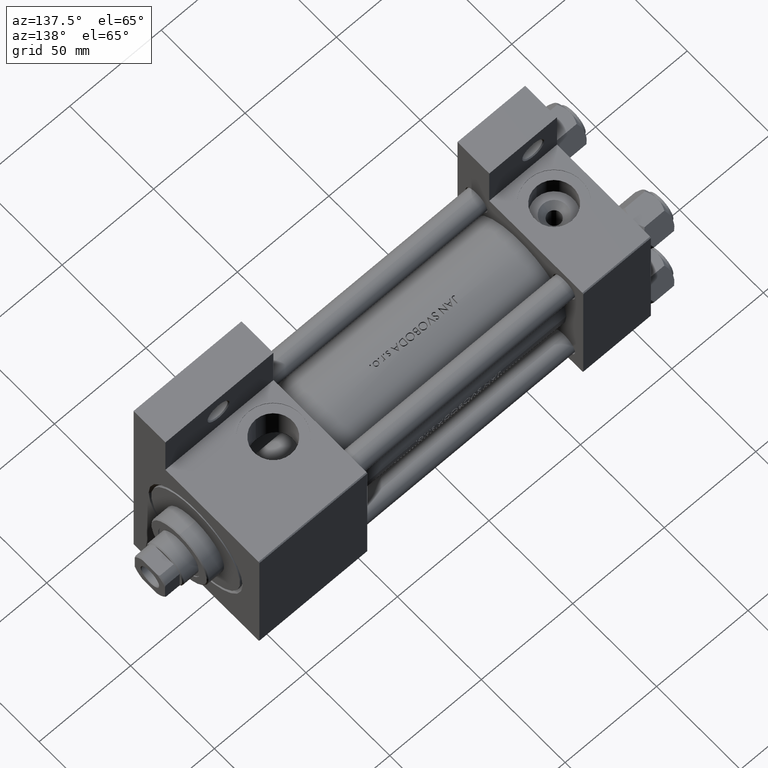
[diagram: clean part render]
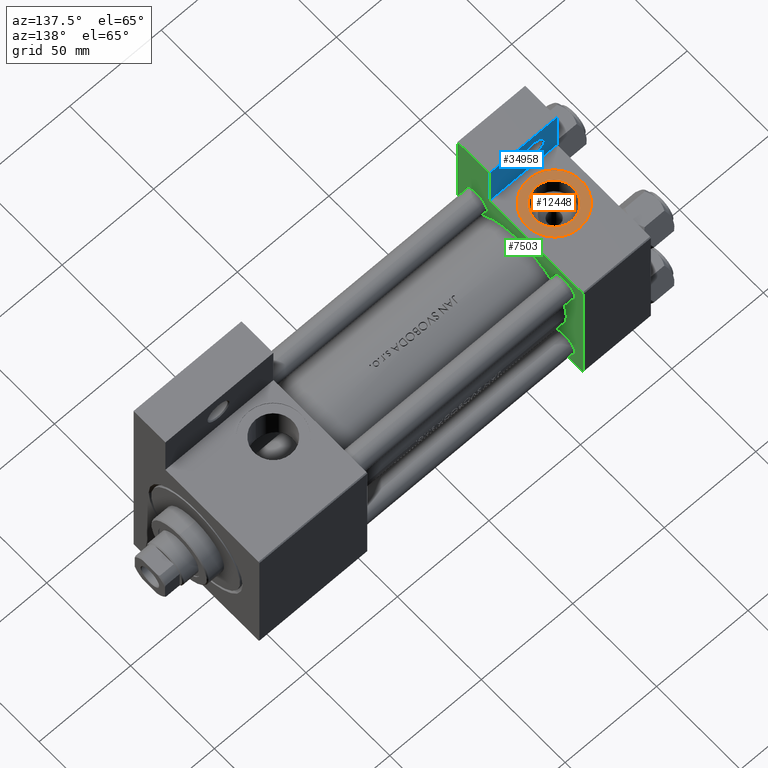
[diagram: same view with three faces highlighted in distinct colors, each labeled with its STEP entity id]
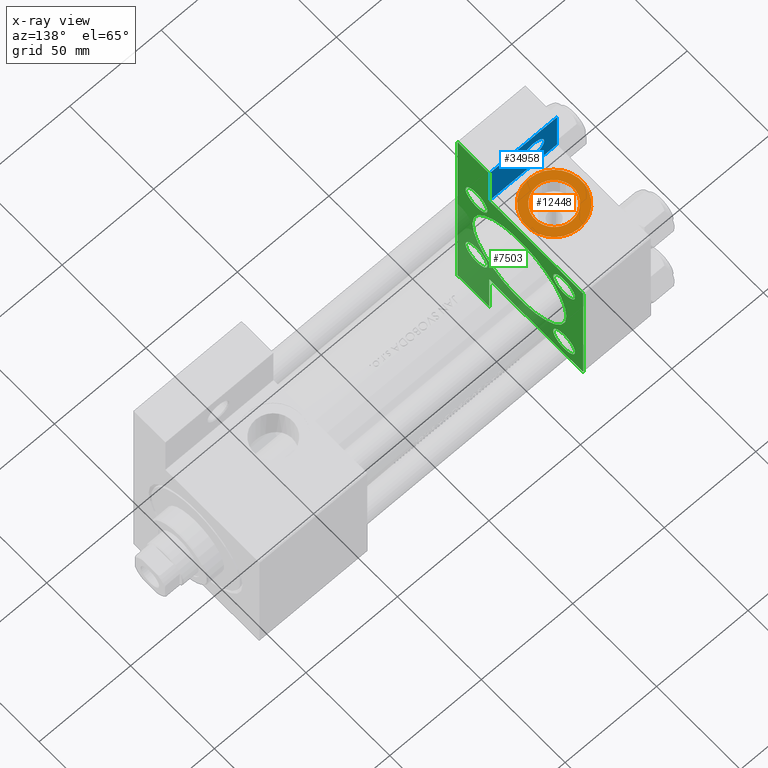
[diagram: x-ray of the same camera — body ghosted, the three highlighted faces saturated]
A machine part, auxiliary view with three faces highlighted in distinct colors.
The next image is the same camera in x-ray (body ghosted, the three faces saturated) — at least one of them is partly hidden behind the body in this view.
Their STEP definitions:

[orange] entity #12448 — the highlighted planar face has unit normal (0, -0, 1).
#2448 = ORIENTED_EDGE ( 'NONE', *, *, #41680, .T. ) ;
#5025 = FACE_OUTER_BOUND ( 'NONE', #38957, .T. ) ;
#6002 = CARTESIAN_POINT ( 'NONE',  ( 18.50000000000000000, -37.30000000000000426, -3.452099717193846907E-15 ) ) ;
#6221 = CIRCLE ( 'NONE', #18855, 15.00000000000000178 ) ;
#6313 = CIRCLE ( 'NONE', #34158, 10.48000000000000043 ) ;
#6790 = EDGE_LOOP ( 'NONE', ( #45760, #23331 ) ) ;
#7754 = CIRCLE ( 'NONE', #17285, 10.48000000000000043 ) ;
#8284 = CARTESIAN_POINT ( 'NONE',  ( 18.50000000000000355, -37.30000000000000426, 14.99999999999999822 ) ) ;
#8390 = ORIENTED_EDGE ( 'NONE', *, *, #10739, .T. ) ;
#9018 = PLANE ( 'NONE',  #32409 ) ;
#10739 = EDGE_CURVE ( 'NONE', #17445, #15867, #6221, .T. ) ;
#12448 = ADVANCED_FACE ( 'NONE', ( #39382, #5025 ), #9018, .T. ) ;
#13067 = AXIS2_PLACEMENT_3D ( 'NONE', #49151, #19241, #26701 ) ;
#15867 = VERTEX_POINT ( 'NONE', #8284 ) ;
#16629 = DIRECTION ( 'NONE',  ( 0.000000000000000000, 0.000000000000000000, -1.000000000000000000 ) ) ;
#17285 = AXIS2_PLACEMENT_3D ( 'NONE', #36734, #24545, #47712 ) ;
#17445 = VERTEX_POINT ( 'NONE', #25242 ) ;
#17997 = CARTESIAN_POINT ( 'NONE',  ( 18.50000000000000000, -37.30000000000000426, -3.452099717193846907E-15 ) ) ;
#18855 = AXIS2_PLACEMENT_3D ( 'NONE', #17997, #48651, #29431 ) ;
#19241 = DIRECTION ( 'NONE',  ( 0.000000000000000000, -1.000000000000000000, -8.673617379884036705E-17 ) ) ;
#21850 = EDGE_CURVE ( 'NONE', #32829, #43046, #7754, .T. ) ;
#23331 = ORIENTED_EDGE ( 'NONE', *, *, #26412, .F. ) ;
#24181 = CIRCLE ( 'NONE', #13067, 15.00000000000000178 ) ;
#24545 = DIRECTION ( 'NONE',  ( 0.000000000000000000, -1.000000000000000000, -8.673617379884036705E-17 ) ) ;
#25242 = CARTESIAN_POINT ( 'NONE',  ( 18.50000000000000000, -37.30000000000000426, -15.00000000000000533 ) ) ;
#26412 = EDGE_CURVE ( 'NONE', #43046, #32829, #6313, .T. ) ;
#26701 = DIRECTION ( 'NONE',  ( 0.000000000000000000, 0.000000000000000000, -1.000000000000000000 ) ) ;
#28307 = DIRECTION ( 'NONE',  ( 0.000000000000000000, -1.000000000000000000, -8.673617379884036705E-17 ) ) ;
#29431 = DIRECTION ( 'NONE',  ( 0.000000000000000000, 0.000000000000000000, -1.000000000000000000 ) ) ;
#32409 = AXIS2_PLACEMENT_3D ( 'NONE', #6002, #40117, #35885 ) ;
#32829 = VERTEX_POINT ( 'NONE', #46810 ) ;
#34158 = AXIS2_PLACEMENT_3D ( 'NONE', #43038, #28307, #16629 ) ;
#35343 = CARTESIAN_POINT ( 'NONE',  ( 18.50000000000000000, -37.30000000000000426, 10.47999999999999687 ) ) ;
#35885 = DIRECTION ( 'NONE',  ( 0.000000000000000000, 8.673617379884036705E-17, -1.000000000000000000 ) ) ;
#36734 = CARTESIAN_POINT ( 'NONE',  ( 18.50000000000000000, -37.30000000000000426, -3.452099717193846907E-15 ) ) ;
#38957 = EDGE_LOOP ( 'NONE', ( #8390, #2448 ) ) ;
#39382 = FACE_BOUND ( 'NONE', #6790, .T. ) ;
#40117 = DIRECTION ( 'NONE',  ( 0.000000000000000000, -1.000000000000000000, -8.673617379884036705E-17 ) ) ;
#41680 = EDGE_CURVE ( 'NONE', #15867, #17445, #24181, .T. ) ;
#43038 = CARTESIAN_POINT ( 'NONE',  ( 18.50000000000000000, -37.30000000000000426, -3.452099717193846907E-15 ) ) ;
#43046 = VERTEX_POINT ( 'NONE', #35343 ) ;
#45760 = ORIENTED_EDGE ( 'NONE', *, *, #21850, .F. ) ;
#46810 = CARTESIAN_POINT ( 'NONE',  ( 18.50000000000000000, -37.30000000000000426, -10.48000000000000398 ) ) ;
#47712 = DIRECTION ( 'NONE',  ( 0.000000000000000000, 0.000000000000000000, -1.000000000000000000 ) ) ;
#48651 = DIRECTION ( 'NONE',  ( 0.000000000000000000, -1.000000000000000000, -8.673617379884036705E-17 ) ) ;
#49151 = CARTESIAN_POINT ( 'NONE',  ( 18.50000000000000000, -37.30000000000000426, -3.452099717193846907E-15 ) ) ;

[blue] entity #34958 — the highlighted planar face has unit normal (0, -1, 0).
#1262 = VERTEX_POINT ( 'NONE', #15414 ) ;
#1274 = VECTOR ( 'NONE', #9531, 1000.000000000000000 ) ;
#2573 = EDGE_LOOP ( 'NONE', ( #13157, #5706 ) ) ;
#4011 = DIRECTION ( 'NONE',  ( 0.000000000000000000, 0.000000000000000000, -1.000000000000000000 ) ) ;
#4158 = ORIENTED_EDGE ( 'NONE', *, *, #4825, .T. ) ;
#4825 = EDGE_CURVE ( 'NONE', #1262, #23500, #37490, .T. ) ;
#5639 = AXIS2_PLACEMENT_3D ( 'NONE', #9875, #22079, #32523 ) ;
#5706 = ORIENTED_EDGE ( 'NONE', *, *, #34286, .T. ) ;
#5865 = ORIENTED_EDGE ( 'NONE', *, *, #18410, .T. ) ;
#6322 = LINE ( 'NONE', #17271, #42935 ) ;
#7241 = ORIENTED_EDGE ( 'NONE', *, *, #39515, .T. ) ;
#8458 = CARTESIAN_POINT ( 'NONE',  ( 18.99950000000010419, -51.00000000000002132, -18.50000000000000000 ) ) ;
#9531 = DIRECTION ( 'NONE',  ( -0.000000000000000000, 1.000000000000000000, 0.000000000000000000 ) ) ;
#9875 = CARTESIAN_POINT ( 'NONE',  ( 12.99999999999999822, -51.00000000000002132, -18.50000000000000000 ) ) ;
#10138 = AXIS2_PLACEMENT_3D ( 'NONE', #34837, #15201, #42335 ) ;
#11676 = CARTESIAN_POINT ( 'NONE',  ( 37.00000000000000000, -63.50000000000000000, -18.50000000000000355 ) ) ;
#11897 = EDGE_CURVE ( 'NONE', #15390, #16461, #35575, .T. ) ;
#12856 = AXIS2_PLACEMENT_3D ( 'NONE', #30155, #4011, #33654 ) ;
#13157 = ORIENTED_EDGE ( 'NONE', *, *, #11897, .T. ) ;
#14854 = VERTEX_POINT ( 'NONE', #47655 ) ;
#15201 = DIRECTION ( 'NONE',  ( 0.000000000000000000, 0.000000000000000000, -1.000000000000000000 ) ) ;
#15385 = VECTOR ( 'NONE', #16135, 1000.000000000000000 ) ;
#15390 = VERTEX_POINT ( 'NONE', #8458 ) ;
#15414 = CARTESIAN_POINT ( 'NONE',  ( 37.00000000000000000, -37.50000000000000000, -18.50000000000000355 ) ) ;
#16135 = DIRECTION ( 'NONE',  ( 1.000000000000000000, 0.000000000000000000, 0.000000000000000000 ) ) ;
#16461 = VERTEX_POINT ( 'NONE', #16479 ) ;
#16479 = CARTESIAN_POINT ( 'NONE',  ( 7.000499999999892253, -51.00000000000002132, -18.50000000000000000 ) ) ;
#17271 = CARTESIAN_POINT ( 'NONE',  ( 3.977209754999744250E-16, -63.49999999999998579, -18.50000000000000355 ) ) ;
#18410 = EDGE_CURVE ( 'NONE', #38578, #1262, #40143, .T. ) ;
#18465 = PLANE ( 'NONE',  #12856 ) ;
#18787 = VECTOR ( 'NONE', #40475, 1000.000000000000000 ) ;
#22079 = DIRECTION ( 'NONE',  ( 0.000000000000000000, 0.000000000000000000, -1.000000000000000000 ) ) ;
#23500 = VERTEX_POINT ( 'NONE', #37512 ) ;
#24095 = CARTESIAN_POINT ( 'NONE',  ( 3.977209754999747208E-16, -63.50000000000000000, -18.50000000000000355 ) ) ;
#26414 = FACE_OUTER_BOUND ( 'NONE', #48841, .T. ) ;
#27093 = CIRCLE ( 'NONE', #5639, 5.999500000000105082 ) ;
#27419 = EDGE_CURVE ( 'NONE', #23500, #14854, #6322, .T. ) ;
#28471 = DIRECTION ( 'NONE',  ( 4.278042683914906889E-17, -1.000000000000000000, 0.000000000000000000 ) ) ;
#30155 = CARTESIAN_POINT ( 'NONE',  ( 0.000000000000000000, 0.000000000000000000, -18.50000000000000000 ) ) ;
#31931 = CARTESIAN_POINT ( 'NONE',  ( 37.00000000000000000, -63.49999999999998579, -18.50000000000000355 ) ) ;
#32523 = DIRECTION ( 'NONE',  ( -1.000000000000000000, 0.000000000000000000, 0.000000000000000000 ) ) ;
#33654 = DIRECTION ( 'NONE',  ( -1.000000000000000000, 0.000000000000000000, -0.000000000000000000 ) ) ;
#34286 = EDGE_CURVE ( 'NONE', #16461, #15390, #27093, .T. ) ;
#34837 = CARTESIAN_POINT ( 'NONE',  ( 12.99999999999999822, -51.00000000000002132, -18.50000000000000000 ) ) ;
#34958 = ADVANCED_FACE ( 'NONE', ( #49109, #26414 ), #18465, .F. ) ;
#35575 = CIRCLE ( 'NONE', #10138, 5.999500000000105082 ) ;
#37490 = LINE ( 'NONE', #44971, #18787 ) ;
#37512 = CARTESIAN_POINT ( 'NONE',  ( -7.145701223179004046E-16, -37.50000000000000711, -18.50000000000000355 ) ) ;
#37656 = ORIENTED_EDGE ( 'NONE', *, *, #27419, .T. ) ;
#38578 = VERTEX_POINT ( 'NONE', #11676 ) ;
#39515 = EDGE_CURVE ( 'NONE', #14854, #38578, #43276, .T. ) ;
#40143 = LINE ( 'NONE', #31931, #1274 ) ;
#40475 = DIRECTION ( 'NONE',  ( -1.000000000000000000, 0.000000000000000000, 0.000000000000000000 ) ) ;
#42335 = DIRECTION ( 'NONE',  ( -1.000000000000000000, 0.000000000000000000, 0.000000000000000000 ) ) ;
#42935 = VECTOR ( 'NONE', #28471, 1000.000000000000000 ) ;
#43276 = LINE ( 'NONE', #24095, #15385 ) ;
#44971 = CARTESIAN_POINT ( 'NONE',  ( -7.145701223179000102E-16, -37.50000000000001421, -18.49999999999999645 ) ) ;
#47655 = CARTESIAN_POINT ( 'NONE',  ( 3.977209754999747208E-16, -63.50000000000000000, -18.50000000000000355 ) ) ;
#48841 = EDGE_LOOP ( 'NONE', ( #5865, #4158, #37656, #7241 ) ) ;
#49109 = FACE_BOUND ( 'NONE', #2573, .T. ) ;

[green] entity #7503 — the highlighted planar face has unit normal (-1, 0, -0).
#7 = AXIS2_PLACEMENT_3D ( 'NONE', #14023, #48139, #44401 ) ;
#395 = CARTESIAN_POINT ( 'NONE',  ( 37.00000000000000000, 26.14999999999999858, 19.64999999999999858 ) ) ;
#489 = ORIENTED_EDGE ( 'NONE', *, *, #18410, .F. ) ;
#1262 = VERTEX_POINT ( 'NONE', #15414 ) ;
#1274 = VECTOR ( 'NONE', #9531, 1000.000000000000000 ) ;
#2264 = ORIENTED_EDGE ( 'NONE', *, *, #35293, .F. ) ;
#2307 = VERTEX_POINT ( 'NONE', #2432 ) ;
#2432 = CARTESIAN_POINT ( 'NONE',  ( 37.00000000000000711, 0.000000000000000000, 27.50000000000000000 ) ) ;
#2575 = VECTOR ( 'NONE', #15288, 1000.000000000000000 ) ;
#2978 = CARTESIAN_POINT ( 'NONE',  ( 37.00000000000000000, -26.14999999999999147, -19.65000000000000924 ) ) ;
#3580 = CARTESIAN_POINT ( 'NONE',  ( 37.00000000000000000, 36.99999999999999289, 37.50000000000000000 ) ) ;
#3642 = ORIENTED_EDGE ( 'NONE', *, *, #38628, .T. ) ;
#3724 = VERTEX_POINT ( 'NONE', #3860 ) ;
#3860 = CARTESIAN_POINT ( 'NONE',  ( 37.00000000000000000, -37.50000000000000711, 36.99999999999999289 ) ) ;
#3885 = ORIENTED_EDGE ( 'NONE', *, *, #39709, .T. ) ;
#4155 = VERTEX_POINT ( 'NONE', #5258 ) ;
#4321 = DIRECTION ( 'NONE',  ( -1.000000000000000000, 0.000000000000000000, -0.000000000000000000 ) ) ;
#4499 = VECTOR ( 'NONE', #39239, 1000.000000000000000 ) ;
#4773 = CIRCLE ( 'NONE', #8770, 6.500000000000002665 ) ;
#4900 = CARTESIAN_POINT ( 'NONE',  ( 37.00000000000000000, 26.14999999999999858, -32.65000000000000568 ) ) ;
#4938 = CARTESIAN_POINT ( 'NONE',  ( 37.00000000000001421, 63.50000000000000000, -37.50000000000002132 ) ) ;
#5258 = CARTESIAN_POINT ( 'NONE',  ( 37.00000000000000711, 37.50000000000000711, -18.50000000000000355 ) ) ;
#5328 = VECTOR ( 'NONE', #12312, 1000.000000000000000 ) ;
#5339 = CIRCLE ( 'NONE', #13304, 6.500000000000002665 ) ;
#6066 = EDGE_CURVE ( 'NONE', #36660, #34393, #21185, .T. ) ;
#6460 = CARTESIAN_POINT ( 'NONE',  ( 37.00000000000000000, -26.14999999999999147, -32.65000000000001279 ) ) ;
#6497 = CARTESIAN_POINT ( 'NONE',  ( 37.00000000000000000, 26.14999999999999858, 26.15000000000000213 ) ) ;
#6804 = CARTESIAN_POINT ( 'NONE',  ( 37.00000000000000000, -26.14999999999999147, 32.65000000000001990 ) ) ;
#7031 = CARTESIAN_POINT ( 'NONE',  ( 37.00000000000000000, -26.14999999999999147, -26.15000000000000924 ) ) ;
#7338 = FACE_BOUND ( 'NONE', #30650, .T. ) ;
#7503 = ADVANCED_FACE ( 'NONE', ( #41699, #26730, #33727, #15056, #7338, #18539 ), #15296, .F. ) ;
#7854 = CARTESIAN_POINT ( 'NONE',  ( 37.00000000000000000, -37.50000000000000711, 37.49999999999999289 ) ) ;
#7886 = EDGE_CURVE ( 'NONE', #31638, #24363, #5339, .T. ) ;
#8281 = CARTESIAN_POINT ( 'NONE',  ( 37.00000000000000000, 26.14999999999999858, -26.15000000000000213 ) ) ;
#8507 = AXIS2_PLACEMENT_3D ( 'NONE', #26249, #4321, #30227 ) ;
#8770 = AXIS2_PLACEMENT_3D ( 'NONE', #8281, #16962, #35147 ) ;
#9023 = VERTEX_POINT ( 'NONE', #42857 ) ;
#9242 = ORIENTED_EDGE ( 'NONE', *, *, #45445, .T. ) ;
#9425 = VERTEX_POINT ( 'NONE', #4938 ) ;
#9457 = CARTESIAN_POINT ( 'NONE',  ( 37.00000000000000000, -37.00000000000000711, 37.49999999999999289 ) ) ;
#9477 = CARTESIAN_POINT ( 'NONE',  ( 37.00000000000000000, -26.14999999999999147, 26.15000000000000924 ) ) ;
#9531 = DIRECTION ( 'NONE',  ( -0.000000000000000000, 1.000000000000000000, 0.000000000000000000 ) ) ;
#10203 = VECTOR ( 'NONE', #21200, 1000.000000000000000 ) ;
#10571 = DIRECTION ( 'NONE',  ( 0.000000000000000000, 0.000000000000000000, 1.000000000000000000 ) ) ;
#10726 = ORIENTED_EDGE ( 'NONE', *, *, #32252, .T. ) ;
#10929 = DIRECTION ( 'NONE',  ( 0.000000000000000000, -1.000000000000000000, -9.251858538542971581E-17 ) ) ;
#11313 = CARTESIAN_POINT ( 'NONE',  ( 37.00000000000000000, 37.49999999999999289, 37.50000000000000000 ) ) ;
#11462 = VERTEX_POINT ( 'NONE', #6804 ) ;
#11676 = CARTESIAN_POINT ( 'NONE',  ( 37.00000000000000000, -63.50000000000000000, -18.50000000000000355 ) ) ;
#11761 = ORIENTED_EDGE ( 'NONE', *, *, #46152, .T. ) ;
#12246 = AXIS2_PLACEMENT_3D ( 'NONE', #43806, #43560, #17634 ) ;
#12312 = DIRECTION ( 'NONE',  ( 0.000000000000000000, 9.251858538542971581E-17, -1.000000000000000000 ) ) ;
#12608 = CARTESIAN_POINT ( 'NONE',  ( 37.00000000000000000, -63.49999999999998579, 26.72167621838007889 ) ) ;
#12738 = ORIENTED_EDGE ( 'NONE', *, *, #6066, .T. ) ;
#13304 = AXIS2_PLACEMENT_3D ( 'NONE', #7031, #26671, #19212 ) ;
#13368 = CARTESIAN_POINT ( 'NONE',  ( 37.00000000000000000, 26.14999999999999858, -19.65000000000000213 ) ) ;
#13810 = CARTESIAN_POINT ( 'NONE',  ( 37.00000000000000000, -26.14999999999999147, 19.65000000000000213 ) ) ;
#14023 = CARTESIAN_POINT ( 'NONE',  ( 37.00000000000000711, 0.000000000000000000, -0.5000000000000004441 ) ) ;
#14117 = LINE ( 'NONE', #41015, #29576 ) ;
#15056 = FACE_BOUND ( 'NONE', #38335, .T. ) ;
#15288 = DIRECTION ( 'NONE',  ( 0.000000000000000000, 0.000000000000000000, -1.000000000000000000 ) ) ;
#15296 = PLANE ( 'NONE',  #8507 ) ;
#15414 = CARTESIAN_POINT ( 'NONE',  ( 37.00000000000000000, -37.50000000000000000, -18.50000000000000355 ) ) ;
#16079 = VECTOR ( 'NONE', #40577, 1000.000000000000114 ) ;
#16298 = CARTESIAN_POINT ( 'NONE',  ( 37.00000000000000000, 26.14999999999999858, 32.65000000000001279 ) ) ;
#16962 = DIRECTION ( 'NONE',  ( -1.000000000000000000, 0.000000000000000000, -0.000000000000000000 ) ) ;
#17241 = ORIENTED_EDGE ( 'NONE', *, *, #27082, .F. ) ;
#17577 = ORIENTED_EDGE ( 'NONE', *, *, #21222, .T. ) ;
#17634 = DIRECTION ( 'NONE',  ( 0.000000000000000000, 0.000000000000000000, 1.000000000000000000 ) ) ;
#17698 = DIRECTION ( 'NONE',  ( 0.000000000000000000, 0.000000000000000000, 1.000000000000000000 ) ) ;
#18410 = EDGE_CURVE ( 'NONE', #38578, #1262, #40143, .T. ) ;
#18539 = FACE_OUTER_BOUND ( 'NONE', #47824, .T. ) ;
#19212 = DIRECTION ( 'NONE',  ( 0.000000000000000000, 0.000000000000000000, 1.000000000000000000 ) ) ;
#19483 = ORIENTED_EDGE ( 'NONE', *, *, #36195, .T. ) ;
#19639 = EDGE_CURVE ( 'NONE', #38578, #33128, #39974, .T. ) ;
#20578 = CARTESIAN_POINT ( 'NONE',  ( 37.00000000000000000, 37.49999999999999289, -37.50000000000000000 ) ) ;
#20691 = EDGE_CURVE ( 'NONE', #3724, #1262, #37983, .T. ) ;
#20945 = DIRECTION ( 'NONE',  ( -1.000000000000000000, 0.000000000000000000, -0.000000000000000000 ) ) ;
#21185 = CIRCLE ( 'NONE', #41896, 6.500000000000008882 ) ;
#21200 = DIRECTION ( 'NONE',  ( 2.668805347656626678E-16, 1.000000000000000000, 0.000000000000000000 ) ) ;
#21222 = EDGE_CURVE ( 'NONE', #30907, #3724, #21684, .T. ) ;
#21245 = ORIENTED_EDGE ( 'NONE', *, *, #49061, .F. ) ;
#21342 = CARTESIAN_POINT ( 'NONE',  ( 37.00000000000000000, -26.14999999999999147, 26.15000000000000924 ) ) ;
#21577 = DIRECTION ( 'NONE',  ( 0.000000000000000000, -1.734723475976806848E-16, -1.000000000000000000 ) ) ;
#21684 = LINE ( 'NONE', #24914, #41183 ) ;
#22092 = DIRECTION ( 'NONE',  ( 0.000000000000000000, 0.000000000000000000, 1.000000000000000000 ) ) ;
#22366 = CARTESIAN_POINT ( 'NONE',  ( 37.00000000000000000, -63.50000000000000000, -37.49999999999999289 ) ) ;
#23122 = CARTESIAN_POINT ( 'NONE',  ( 37.00000000000000000, -26.14999999999999147, -26.15000000000000924 ) ) ;
#23230 = CIRCLE ( 'NONE', #40757, 6.500000000000008882 ) ;
#23325 = VERTEX_POINT ( 'NONE', #13368 ) ;
#23870 = CIRCLE ( 'NONE', #38977, 6.500000000000002665 ) ;
#24054 = EDGE_CURVE ( 'NONE', #4155, #45238, #32405, .T. ) ;
#24058 = ORIENTED_EDGE ( 'NONE', *, *, #7886, .T. ) ;
#24363 = VERTEX_POINT ( 'NONE', #2978 ) ;
#24648 = DIRECTION ( 'NONE',  ( -1.000000000000000000, 0.000000000000000000, -0.000000000000000000 ) ) ;
#24679 = EDGE_CURVE ( 'NONE', #34393, #36660, #25354, .T. ) ;
#24914 = CARTESIAN_POINT ( 'NONE',  ( 37.00000000000000000, -37.50000000000000711, 36.99999999999999289 ) ) ;
#25354 = CIRCLE ( 'NONE', #26924, 6.500000000000008882 ) ;
#25368 = CARTESIAN_POINT ( 'NONE',  ( 37.00000000000000000, 36.99999999999999289, 37.50000000000000000 ) ) ;
#25539 = CARTESIAN_POINT ( 'NONE',  ( 37.00000000000000000, 37.49999999999999289, 37.00000000000000000 ) ) ;
#26249 = CARTESIAN_POINT ( 'NONE',  ( 37.00000000000000000, 0.000000000000000000, 0.000000000000000000 ) ) ;
#26488 = DIRECTION ( 'NONE',  ( -1.000000000000000000, 0.000000000000000000, -0.000000000000000000 ) ) ;
#26666 = CARTESIAN_POINT ( 'NONE',  ( 37.00000000000001421, 63.50000000000000000, -18.50000000000000355 ) ) ;
#26671 = DIRECTION ( 'NONE',  ( -1.000000000000000000, 0.000000000000000000, -0.000000000000000000 ) ) ;
#26730 = FACE_BOUND ( 'NONE', #29365, .T. ) ;
#26924 = AXIS2_PLACEMENT_3D ( 'NONE', #36957, #26488, #10571 ) ;
#27082 = EDGE_CURVE ( 'NONE', #2307, #9023, #38178, .T. ) ;
#27231 = CIRCLE ( 'NONE', #35197, 6.500000000000002665 ) ;
#27333 = CIRCLE ( 'NONE', #12246, 28.00000000000000000 ) ;
#27348 = EDGE_LOOP ( 'NONE', ( #24058, #3642 ) ) ;
#29365 = EDGE_LOOP ( 'NONE', ( #10726, #33103 ) ) ;
#29576 = VECTOR ( 'NONE', #21577, 1000.000000000000000 ) ;
#29579 = LINE ( 'NONE', #44801, #36727 ) ;
#30227 = DIRECTION ( 'NONE',  ( -0.000000000000000000, 0.000000000000000000, 1.000000000000000000 ) ) ;
#30650 = EDGE_LOOP ( 'NONE', ( #17241, #42953 ) ) ;
#30907 = VERTEX_POINT ( 'NONE', #9457 ) ;
#31256 = CIRCLE ( 'NONE', #43994, 6.500000000000008882 ) ;
#31525 = EDGE_CURVE ( 'NONE', #23325, #33252, #23870, .T. ) ;
#31638 = VERTEX_POINT ( 'NONE', #6460 ) ;
#31931 = CARTESIAN_POINT ( 'NONE',  ( 37.00000000000000000, -63.49999999999998579, -18.50000000000000355 ) ) ;
#32252 = EDGE_CURVE ( 'NONE', #33252, #23325, #4773, .T. ) ;
#32405 = LINE ( 'NONE', #43877, #10203 ) ;
#32555 = ORIENTED_EDGE ( 'NONE', *, *, #46316, .F. ) ;
#32780 = DIRECTION ( 'NONE',  ( -1.000000000000000000, 0.000000000000000000, -0.000000000000000000 ) ) ;
#33103 = ORIENTED_EDGE ( 'NONE', *, *, #31525, .T. ) ;
#33128 = VERTEX_POINT ( 'NONE', #22366 ) ;
#33129 = DIRECTION ( 'NONE',  ( -0.000000000000000000, -0.7071067811865474617, -0.7071067811865474617 ) ) ;
#33252 = VERTEX_POINT ( 'NONE', #4900 ) ;
#33313 = EDGE_LOOP ( 'NONE', ( #11761, #3885 ) ) ;
#33727 = FACE_BOUND ( 'NONE', #33313, .T. ) ;
#33764 = VERTEX_POINT ( 'NONE', #3580 ) ;
#34102 = ORIENTED_EDGE ( 'NONE', *, *, #20691, .T. ) ;
#34393 = VERTEX_POINT ( 'NONE', #16298 ) ;
#35147 = DIRECTION ( 'NONE',  ( 0.000000000000000000, 0.000000000000000000, 1.000000000000000000 ) ) ;
#35197 = AXIS2_PLACEMENT_3D ( 'NONE', #23122, #38794, #47013 ) ;
#35293 = EDGE_CURVE ( 'NONE', #9425, #33128, #39498, .T. ) ;
#35363 = DIRECTION ( 'NONE',  ( 0.000000000000000000, 0.000000000000000000, 1.000000000000000000 ) ) ;
#35754 = DIRECTION ( 'NONE',  ( 0.000000000000000000, -1.000000000000000000, -9.251858538542972814E-17 ) ) ;
#35756 = ORIENTED_EDGE ( 'NONE', *, *, #24679, .T. ) ;
#36195 = EDGE_CURVE ( 'NONE', #33764, #30907, #29579, .T. ) ;
#36660 = VERTEX_POINT ( 'NONE', #395 ) ;
#36727 = VECTOR ( 'NONE', #10929, 1000.000000000000000 ) ;
#36957 = CARTESIAN_POINT ( 'NONE',  ( 37.00000000000000000, 26.14999999999999858, 26.15000000000000213 ) ) ;
#37644 = CARTESIAN_POINT ( 'NONE',  ( 37.00000000000000000, 26.14999999999999858, -26.15000000000000213 ) ) ;
#37983 = LINE ( 'NONE', #7854, #5328 ) ;
#38178 = CIRCLE ( 'NONE', #7, 28.00000000000000000 ) ;
#38335 = EDGE_LOOP ( 'NONE', ( #12738, #35756 ) ) ;
#38578 = VERTEX_POINT ( 'NONE', #11676 ) ;
#38628 = EDGE_CURVE ( 'NONE', #24363, #31638, #27231, .T. ) ;
#38794 = DIRECTION ( 'NONE',  ( -1.000000000000000000, 0.000000000000000000, -0.000000000000000000 ) ) ;
#38977 = AXIS2_PLACEMENT_3D ( 'NONE', #37644, #42356, #45370 ) ;
#39239 = DIRECTION ( 'NONE',  ( 0.000000000000000000, -1.734723475976806848E-16, -1.000000000000000000 ) ) ;
#39498 = LINE ( 'NONE', #20578, #42258 ) ;
#39709 = EDGE_CURVE ( 'NONE', #11462, #44489, #31256, .T. ) ;
#39974 = LINE ( 'NONE', #12608, #4499 ) ;
#40143 = LINE ( 'NONE', #31931, #1274 ) ;
#40577 = DIRECTION ( 'NONE',  ( 0.000000000000000000, -0.7071067811865474617, 0.7071067811865474617 ) ) ;
#40757 = AXIS2_PLACEMENT_3D ( 'NONE', #9477, #24648, #35363 ) ;
#41015 = CARTESIAN_POINT ( 'NONE',  ( 37.00000000000001421, 63.50000000000001421, 26.72167621838005047 ) ) ;
#41183 = VECTOR ( 'NONE', #33129, 1000.000000000000114 ) ;
#41699 = FACE_BOUND ( 'NONE', #27348, .T. ) ;
#41896 = AXIS2_PLACEMENT_3D ( 'NONE', #6497, #20945, #17698 ) ;
#42137 = EDGE_CURVE ( 'NONE', #9023, #2307, #27333, .T. ) ;
#42258 = VECTOR ( 'NONE', #35754, 1000.000000000000000 ) ;
#42356 = DIRECTION ( 'NONE',  ( -1.000000000000000000, 0.000000000000000000, -0.000000000000000000 ) ) ;
#42857 = CARTESIAN_POINT ( 'NONE',  ( 37.00000000000000711, 3.429011037612589276E-15, -28.50000000000000000 ) ) ;
#42953 = ORIENTED_EDGE ( 'NONE', *, *, #42137, .F. ) ;
#43545 = VERTEX_POINT ( 'NONE', #25539 ) ;
#43560 = DIRECTION ( 'NONE',  ( 1.000000000000000000, -0.000000000000000000, 0.000000000000000000 ) ) ;
#43806 = CARTESIAN_POINT ( 'NONE',  ( 37.00000000000000711, 0.000000000000000000, -0.5000000000000004441 ) ) ;
#43877 = CARTESIAN_POINT ( 'NONE',  ( 37.00000000000001421, 63.50000000000001421, -18.50000000000000355 ) ) ;
#43994 = AXIS2_PLACEMENT_3D ( 'NONE', #21342, #32780, #22092 ) ;
#44401 = DIRECTION ( 'NONE',  ( 0.000000000000000000, 0.000000000000000000, 1.000000000000000000 ) ) ;
#44489 = VERTEX_POINT ( 'NONE', #13810 ) ;
#44801 = CARTESIAN_POINT ( 'NONE',  ( 37.00000000000000000, 37.49999999999999289, 37.50000000000000000 ) ) ;
#45238 = VERTEX_POINT ( 'NONE', #26666 ) ;
#45370 = DIRECTION ( 'NONE',  ( 0.000000000000000000, 0.000000000000000000, 1.000000000000000000 ) ) ;
#45433 = LINE ( 'NONE', #11313, #2575 ) ;
#45445 = EDGE_CURVE ( 'NONE', #43545, #33764, #48059, .T. ) ;
#46047 = ORIENTED_EDGE ( 'NONE', *, *, #24054, .F. ) ;
#46152 = EDGE_CURVE ( 'NONE', #44489, #11462, #23230, .T. ) ;
#46316 = EDGE_CURVE ( 'NONE', #45238, #9425, #14117, .T. ) ;
#47013 = DIRECTION ( 'NONE',  ( 0.000000000000000000, 0.000000000000000000, 1.000000000000000000 ) ) ;
#47824 = EDGE_LOOP ( 'NONE', ( #19483, #17577, #34102, #489, #48703, #2264, #32555, #46047, #21245, #9242 ) ) ;
#48059 = LINE ( 'NONE', #25368, #16079 ) ;
#48139 = DIRECTION ( 'NONE',  ( 1.000000000000000000, -0.000000000000000000, 0.000000000000000000 ) ) ;
#48703 = ORIENTED_EDGE ( 'NONE', *, *, #19639, .T. ) ;
#49061 = EDGE_CURVE ( 'NONE', #43545, #4155, #45433, .T. ) ;